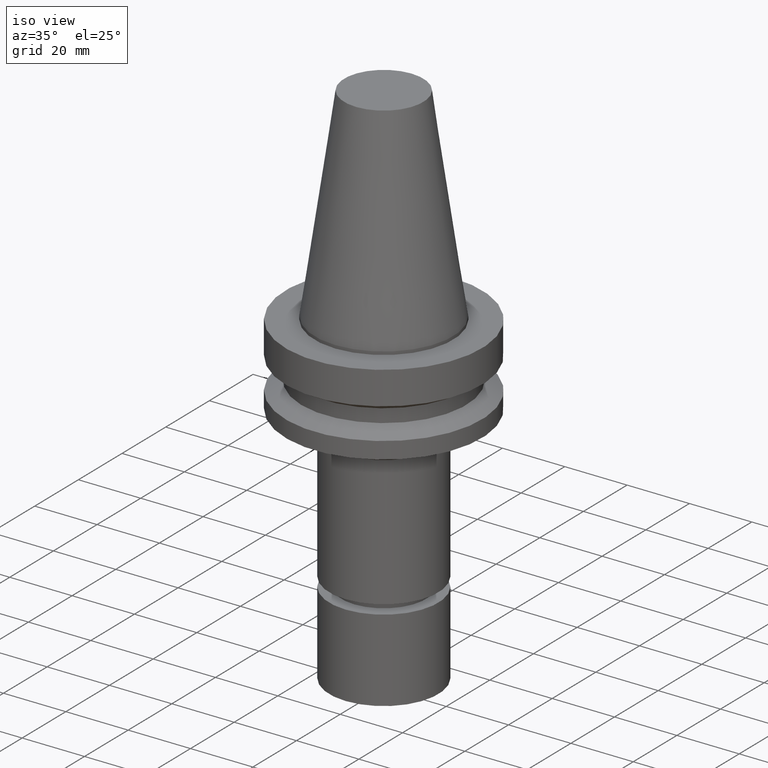
[diagram: clean part render]
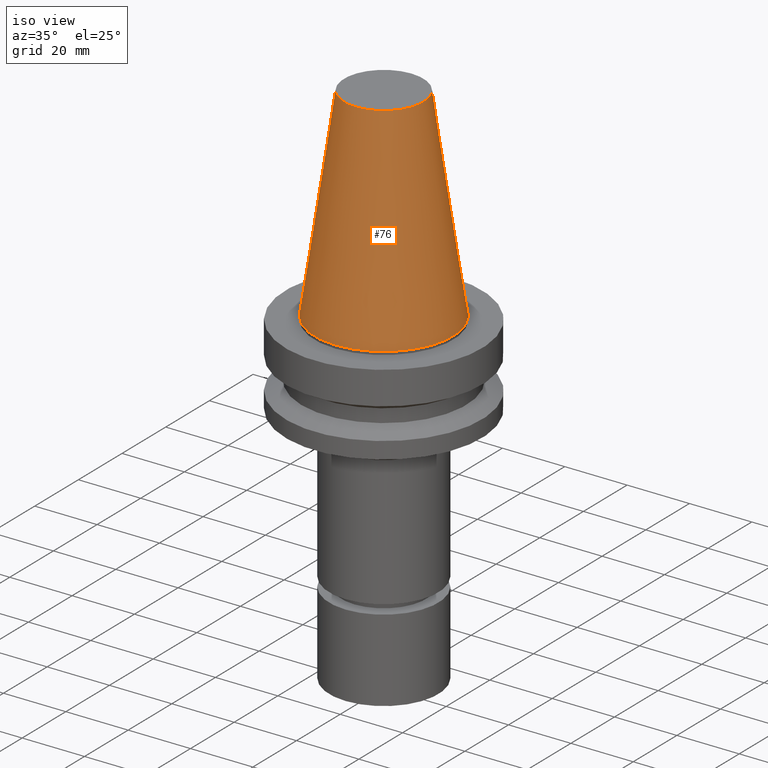
[diagram: same view with one face highlighted and labeled with its STEP entity id]
A machine part, iso view. The second image highlights one B-rep face of the part: STEP entity #76.
In plain terms, the highlighted conical surface has half-angle 8.297 deg.
Its self-contained STEP definition (entity closure, byte-faithful):
#76=ADVANCED_FACE('Unnamed[1]',(#202,#203),#204,.T.);
#89=EDGE_CURVE('Unnamed[1]',#223,#223,#224,.T.);
#94=EDGE_CURVE('Unnamed[1]',#231,#231,#232,.T.);
#202=FACE_BOUND('',#378,.T.);
#203=FACE_BOUND('',#379,.T.);
#204=CONICAL_SURFACE('',#380,17.45625,0.144812498238936);
#223=VERTEX_POINT('',#404);
#224=CIRCLE('',#405,22.225);
#231=VERTEX_POINT('',#414);
#232=CIRCLE('',#415,12.6875000000001);
#378=EDGE_LOOP('',(#581));
#379=EDGE_LOOP('',(#582));
#380=AXIS2_PLACEMENT_3D('',#583,#584,#585);
#404=CARTESIAN_POINT('',(1.71319921032766E-029,22.2250000000001,-2.8153873565375E-013));
#405=AXIS2_PLACEMENT_3D('',#606,#607,#608);
#414=CARTESIAN_POINT('',(-4.00459503321185E-015,12.6875000000002,65.4000000000001));
#415=AXIS2_PLACEMENT_3D('',#615,#616,#617);
#581=ORIENTED_EDGE('',*,*,#89,.F.);
#582=ORIENTED_EDGE('',*,*,#94,.T.);
#583=CARTESIAN_POINT('',(-2.00229751660592E-015,7.27451002273759E-014,32.6999999999999));
#584=DIRECTION('',(6.12323399573677E-017,-1.31253561610864E-016,-1.0));
#585=DIRECTION('',(3.20980997441273E-033,1.0,-1.31253561610864E-016));
#606=CARTESIAN_POINT('',(1.74032777401202E-029,6.84531087627011E-014,-2.8421709430404E-013));
#607=DIRECTION('',(6.12323399573677E-017,-1.31253561610879E-016,-1.0));
#608=DIRECTION('',(3.20980997440837E-033,1.0,-1.31253561610879E-016));
#615=CARTESIAN_POINT('',(-4.00459503321185E-015,7.70370916920507E-014,65.4000000000001));
#616=DIRECTION('',(6.12323399573677E-017,-1.31253561610837E-016,-1.0));
#617=DIRECTION('',(3.20980997439916E-033,1.0,-1.31253561610837E-016));